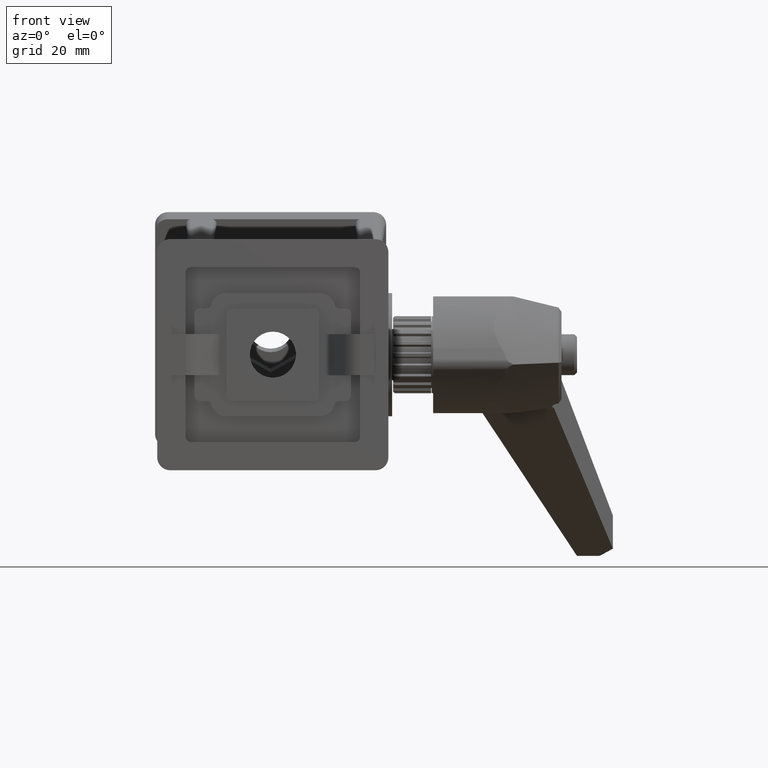
[diagram: clean part render]
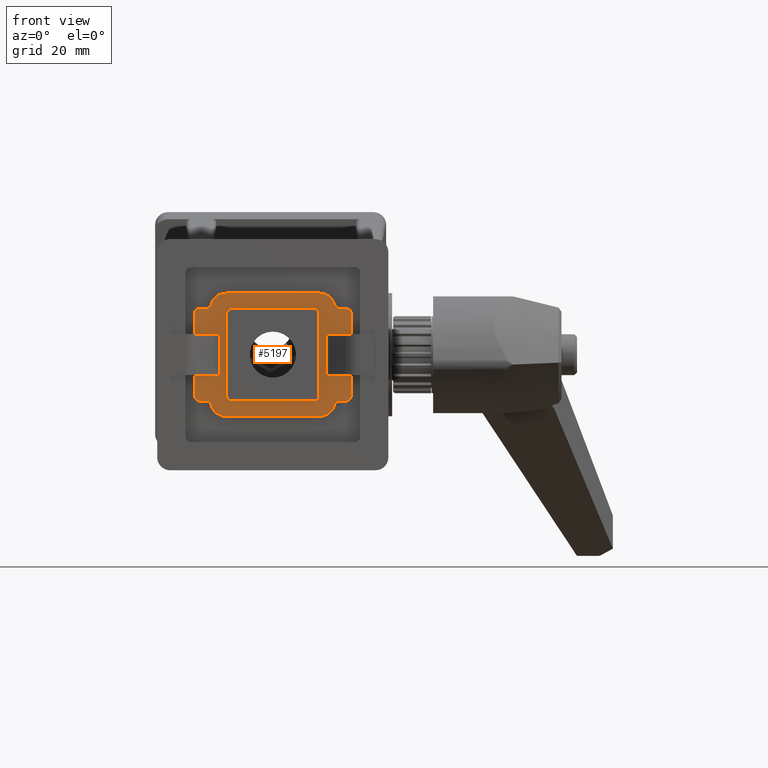
[diagram: same view with one face highlighted and labeled with its STEP entity id]
A machine part, front view. The second image highlights one B-rep face of the part: STEP entity #5197.
In plain terms, the highlighted planar face has unit normal (0, -1, -0).
Its self-contained STEP definition (entity closure, byte-faithful):
#171=LINE('',#8756,#602);
#176=LINE('',#8771,#607);
#182=LINE('',#8792,#613);
#183=LINE('',#8798,#614);
#184=LINE('',#8802,#615);
#185=LINE('',#8804,#616);
#186=LINE('',#8806,#617);
#187=LINE('',#8808,#618);
#188=LINE('',#8810,#619);
#189=LINE('',#8814,#620);
#190=LINE('',#8820,#621);
#191=LINE('',#8826,#622);
#192=LINE('',#8829,#623);
#193=LINE('',#8830,#624);
#194=LINE('',#8832,#625);
#195=LINE('',#8835,#626);
#196=LINE('',#8838,#627);
#197=LINE('',#8842,#628);
#198=LINE('',#8846,#629);
#199=LINE('',#8850,#630);
#602=VECTOR('',#6274,4.9142135623731);
#607=VECTOR('',#6285,4.9142135623731);
#613=VECTOR('',#6301,18.2540333075852);
#614=VECTOR('',#6306,1.25);
#615=VECTOR('',#6309,4.);
#616=VECTOR('',#6310,4.91421356237309);
#617=VECTOR('',#6311,8.);
#618=VECTOR('',#6312,4.91421356237309);
#619=VECTOR('',#6313,4.);
#620=VECTOR('',#6316,1.25000000000001);
#621=VECTOR('',#6321,18.2540333075852);
#622=VECTOR('',#6326,1.24999999999998);
#623=VECTOR('',#6329,4.);
#624=VECTOR('',#6330,8.);
#625=VECTOR('',#6331,4.);
#626=VECTOR('',#6334,1.24999999999999);
#627=VECTOR('',#6335,16.);
#628=VECTOR('',#6338,16.);
#629=VECTOR('',#6341,16.);
#630=VECTOR('',#6344,16.);
#975=PLANE('',#5540);
#1132=FACE_BOUND('',#1667,.T.);
#1358=FACE_OUTER_BOUND('',#1666,.T.);
#1666=EDGE_LOOP('',(#3892,#3893,#3894,#3895,#3896,#3897,#3898,#3899,#3900,
#3901,#3902,#3903,#3904,#3905,#3906,#3907,#3908,#3909,#3910,#3911,#3912,
#3913,#3914,#3915,#3916,#3917,#3918,#3919));
#1667=EDGE_LOOP('',(#3920,#3921,#3922,#3923,#3924,#3925,#3926,#3927));
#2024=CIRCLE('',#5541,1.);
#2025=CIRCLE('',#5542,3.);
#2026=CIRCLE('',#5543,3.);
#2027=CIRCLE('',#5544,1.);
#2028=CIRCLE('',#5545,1.);
#2029=CIRCLE('',#5546,1.);
#2030=CIRCLE('',#5547,1.);
#2031=CIRCLE('',#5548,3.);
#2032=CIRCLE('',#5549,3.);
#2033=CIRCLE('',#5550,0.999999999999999);
#2034=CIRCLE('',#5551,1.);
#2035=CIRCLE('',#5552,1.);
#2036=CIRCLE('',#5553,1.);
#2037=CIRCLE('',#5554,1.);
#2038=CIRCLE('',#5555,1.);
#2039=CIRCLE('',#5556,1.);
#2353=VERTEX_POINT('',#8753);
#2354=VERTEX_POINT('',#8755);
#2360=VERTEX_POINT('',#8769);
#2361=VERTEX_POINT('',#8770);
#2368=VERTEX_POINT('',#8786);
#2369=VERTEX_POINT('',#8787);
#2370=VERTEX_POINT('',#8789);
#2371=VERTEX_POINT('',#8791);
#2372=VERTEX_POINT('',#8793);
#2373=VERTEX_POINT('',#8795);
#2374=VERTEX_POINT('',#8797);
#2375=VERTEX_POINT('',#8799);
#2376=VERTEX_POINT('',#8801);
#2377=VERTEX_POINT('',#8803);
#2378=VERTEX_POINT('',#8805);
#2379=VERTEX_POINT('',#8807);
#2380=VERTEX_POINT('',#8809);
#2381=VERTEX_POINT('',#8811);
#2382=VERTEX_POINT('',#8813);
#2383=VERTEX_POINT('',#8815);
#2384=VERTEX_POINT('',#8817);
#2385=VERTEX_POINT('',#8819);
#2386=VERTEX_POINT('',#8821);
#2387=VERTEX_POINT('',#8823);
#2388=VERTEX_POINT('',#8825);
#2389=VERTEX_POINT('',#8827);
#2390=VERTEX_POINT('',#8831);
#2391=VERTEX_POINT('',#8833);
#2392=VERTEX_POINT('',#8836);
#2393=VERTEX_POINT('',#8837);
#2394=VERTEX_POINT('',#8839);
#2395=VERTEX_POINT('',#8841);
#2396=VERTEX_POINT('',#8843);
#2397=VERTEX_POINT('',#8845);
#2398=VERTEX_POINT('',#8847);
#2399=VERTEX_POINT('',#8849);
#2935=EDGE_CURVE('',#2354,#2353,#171,.T.);
#2942=EDGE_CURVE('',#2360,#2361,#176,.T.);
#2950=EDGE_CURVE('',#2368,#2369,#2024,.T.);
#2951=EDGE_CURVE('',#2369,#2370,#2025,.T.);
#2952=EDGE_CURVE('',#2370,#2371,#182,.T.);
#2953=EDGE_CURVE('',#2371,#2372,#2026,.T.);
#2954=EDGE_CURVE('',#2372,#2373,#2027,.T.);
#2955=EDGE_CURVE('',#2373,#2374,#183,.T.);
#2956=EDGE_CURVE('',#2374,#2375,#2028,.T.);
#2957=EDGE_CURVE('',#2375,#2376,#184,.T.);
#2958=EDGE_CURVE('',#2376,#2377,#185,.T.);
#2959=EDGE_CURVE('',#2377,#2378,#186,.T.);
#2960=EDGE_CURVE('',#2379,#2378,#187,.T.);
#2961=EDGE_CURVE('',#2379,#2380,#188,.T.);
#2962=EDGE_CURVE('',#2380,#2381,#2029,.T.);
#2963=EDGE_CURVE('',#2381,#2382,#189,.T.);
#2964=EDGE_CURVE('',#2382,#2383,#2030,.T.);
#2965=EDGE_CURVE('',#2383,#2384,#2031,.T.);
#2966=EDGE_CURVE('',#2384,#2385,#190,.T.);
#2967=EDGE_CURVE('',#2385,#2386,#2032,.T.);
#2968=EDGE_CURVE('',#2386,#2387,#2033,.T.);
#2969=EDGE_CURVE('',#2387,#2388,#191,.T.);
#2970=EDGE_CURVE('',#2388,#2389,#2034,.T.);
#2971=EDGE_CURVE('',#2389,#2361,#192,.T.);
#2972=EDGE_CURVE('',#2360,#2354,#193,.T.);
#2973=EDGE_CURVE('',#2353,#2390,#194,.T.);
#2974=EDGE_CURVE('',#2390,#2391,#2035,.T.);
#2975=EDGE_CURVE('',#2391,#2368,#195,.T.);
#2976=EDGE_CURVE('',#2392,#2393,#196,.T.);
#2977=EDGE_CURVE('',#2392,#2394,#2036,.T.);
#2978=EDGE_CURVE('',#2395,#2394,#197,.T.);
#2979=EDGE_CURVE('',#2395,#2396,#2037,.T.);
#2980=EDGE_CURVE('',#2397,#2396,#198,.T.);
#2981=EDGE_CURVE('',#2397,#2398,#2038,.T.);
#2982=EDGE_CURVE('',#2399,#2398,#199,.T.);
#2983=EDGE_CURVE('',#2399,#2393,#2039,.T.);
#3892=ORIENTED_EDGE('',*,*,#2950,.T.);
#3893=ORIENTED_EDGE('',*,*,#2951,.T.);
#3894=ORIENTED_EDGE('',*,*,#2952,.T.);
#3895=ORIENTED_EDGE('',*,*,#2953,.T.);
#3896=ORIENTED_EDGE('',*,*,#2954,.T.);
#3897=ORIENTED_EDGE('',*,*,#2955,.T.);
#3898=ORIENTED_EDGE('',*,*,#2956,.T.);
#3899=ORIENTED_EDGE('',*,*,#2957,.T.);
#3900=ORIENTED_EDGE('',*,*,#2958,.T.);
#3901=ORIENTED_EDGE('',*,*,#2959,.T.);
#3902=ORIENTED_EDGE('',*,*,#2960,.F.);
#3903=ORIENTED_EDGE('',*,*,#2961,.T.);
#3904=ORIENTED_EDGE('',*,*,#2962,.T.);
#3905=ORIENTED_EDGE('',*,*,#2963,.T.);
#3906=ORIENTED_EDGE('',*,*,#2964,.T.);
#3907=ORIENTED_EDGE('',*,*,#2965,.T.);
#3908=ORIENTED_EDGE('',*,*,#2966,.T.);
#3909=ORIENTED_EDGE('',*,*,#2967,.T.);
#3910=ORIENTED_EDGE('',*,*,#2968,.T.);
#3911=ORIENTED_EDGE('',*,*,#2969,.T.);
#3912=ORIENTED_EDGE('',*,*,#2970,.T.);
#3913=ORIENTED_EDGE('',*,*,#2971,.T.);
#3914=ORIENTED_EDGE('',*,*,#2942,.F.);
#3915=ORIENTED_EDGE('',*,*,#2972,.T.);
#3916=ORIENTED_EDGE('',*,*,#2935,.T.);
#3917=ORIENTED_EDGE('',*,*,#2973,.T.);
#3918=ORIENTED_EDGE('',*,*,#2974,.T.);
#3919=ORIENTED_EDGE('',*,*,#2975,.T.);
#3920=ORIENTED_EDGE('',*,*,#2976,.F.);
#3921=ORIENTED_EDGE('',*,*,#2977,.T.);
#3922=ORIENTED_EDGE('',*,*,#2978,.F.);
#3923=ORIENTED_EDGE('',*,*,#2979,.T.);
#3924=ORIENTED_EDGE('',*,*,#2980,.F.);
#3925=ORIENTED_EDGE('',*,*,#2981,.T.);
#3926=ORIENTED_EDGE('',*,*,#2982,.F.);
#3927=ORIENTED_EDGE('',*,*,#2983,.T.);
#5197=ADVANCED_FACE('',(#1358,#1132),#975,.T.);
#5540=AXIS2_PLACEMENT_3D('',#8785,#6295,#6296);
#5541=AXIS2_PLACEMENT_3D('',#8788,#6297,#6298);
#5542=AXIS2_PLACEMENT_3D('',#8790,#6299,#6300);
#5543=AXIS2_PLACEMENT_3D('',#8794,#6302,#6303);
#5544=AXIS2_PLACEMENT_3D('',#8796,#6304,#6305);
#5545=AXIS2_PLACEMENT_3D('',#8800,#6307,#6308);
#5546=AXIS2_PLACEMENT_3D('',#8812,#6314,#6315);
#5547=AXIS2_PLACEMENT_3D('',#8816,#6317,#6318);
#5548=AXIS2_PLACEMENT_3D('',#8818,#6319,#6320);
#5549=AXIS2_PLACEMENT_3D('',#8822,#6322,#6323);
#5550=AXIS2_PLACEMENT_3D('',#8824,#6324,#6325);
#5551=AXIS2_PLACEMENT_3D('',#8828,#6327,#6328);
#5552=AXIS2_PLACEMENT_3D('',#8834,#6332,#6333);
#5553=AXIS2_PLACEMENT_3D('',#8840,#6336,#6337);
#5554=AXIS2_PLACEMENT_3D('',#8844,#6339,#6340);
#5555=AXIS2_PLACEMENT_3D('',#8848,#6342,#6343);
#5556=AXIS2_PLACEMENT_3D('',#8851,#6345,#6346);
#6274=DIRECTION('',(1.,0.,0.));
#6285=DIRECTION('',(1.,0.,0.));
#6295=DIRECTION('center_axis',(0.,0.,1.));
#6296=DIRECTION('ref_axis',(1.,0.,0.));
#6297=DIRECTION('center_axis',(0.,0.,-1.));
#6298=DIRECTION('ref_axis',(1.,0.,0.));
#6299=DIRECTION('center_axis',(0.,0.,1.));
#6300=DIRECTION('ref_axis',(1.,0.,0.));
#6301=DIRECTION('',(-1.,-1.44560289664734E-16,0.));
#6302=DIRECTION('center_axis',(0.,0.,1.));
#6303=DIRECTION('ref_axis',(1.,0.,0.));
#6304=DIRECTION('center_axis',(0.,0.,-1.));
#6305=DIRECTION('ref_axis',(1.,0.,0.));
#6306=DIRECTION('',(-1.,-2.77555756156289E-16,0.));
#6307=DIRECTION('center_axis',(0.,0.,1.));
#6308=DIRECTION('ref_axis',(1.,0.,0.));
#6309=DIRECTION('',(0.,-1.,0.));
#6310=DIRECTION('',(1.,0.,0.));
#6311=DIRECTION('',(0.,-1.,0.));
#6312=DIRECTION('',(1.,0.,0.));
#6313=DIRECTION('',(0.,-1.,0.));
#6314=DIRECTION('center_axis',(0.,0.,1.));
#6315=DIRECTION('ref_axis',(1.,0.,0.));
#6316=DIRECTION('',(1.,0.,0.));
#6317=DIRECTION('center_axis',(0.,0.,-1.));
#6318=DIRECTION('ref_axis',(1.,0.,0.));
#6319=DIRECTION('center_axis',(0.,0.,1.));
#6320=DIRECTION('ref_axis',(1.,0.,0.));
#6321=DIRECTION('',(1.,2.16840434497101E-16,0.));
#6322=DIRECTION('center_axis',(0.,0.,1.));
#6323=DIRECTION('ref_axis',(1.,0.,0.));
#6324=DIRECTION('center_axis',(0.,0.,-1.));
#6325=DIRECTION('ref_axis',(1.,0.,0.));
#6326=DIRECTION('',(1.,0.,0.));
#6327=DIRECTION('center_axis',(0.,0.,1.));
#6328=DIRECTION('ref_axis',(1.,0.,0.));
#6329=DIRECTION('',(0.,1.,0.));
#6330=DIRECTION('',(0.,1.,0.));
#6331=DIRECTION('',(0.,1.,0.));
#6332=DIRECTION('center_axis',(0.,0.,1.));
#6333=DIRECTION('ref_axis',(1.,0.,0.));
#6334=DIRECTION('',(-1.,2.77555756156289E-16,0.));
#6335=DIRECTION('',(0.,-1.,0.));
#6336=DIRECTION('center_axis',(0.,0.,-1.));
#6337=DIRECTION('ref_axis',(1.,0.,0.));
#6338=DIRECTION('',(-1.,0.,0.));
#6339=DIRECTION('center_axis',(0.,0.,-1.));
#6340=DIRECTION('ref_axis',(1.,0.,0.));
#6341=DIRECTION('',(0.,1.,0.));
#6342=DIRECTION('center_axis',(0.,0.,-1.));
#6343=DIRECTION('ref_axis',(1.,0.,0.));
#6344=DIRECTION('',(1.,0.,0.));
#6345=DIRECTION('center_axis',(0.,0.,-1.));
#6346=DIRECTION('ref_axis',(1.,0.,0.));
#8753=CARTESIAN_POINT('',(15.25,4.,2.5));
#8755=CARTESIAN_POINT('',(10.3357864376269,4.,2.5));
#8756=CARTESIAN_POINT('',(12.,4.,2.5));
#8769=CARTESIAN_POINT('',(10.3357864376269,-4.,2.5));
#8770=CARTESIAN_POINT('',(15.25,-4.,2.5));
#8771=CARTESIAN_POINT('',(12.,-4.,2.5));
#8785=CARTESIAN_POINT('Origin',(12.,-12.,2.5));
#8786=CARTESIAN_POINT('',(13.,9.,2.5));
#8787=CARTESIAN_POINT('',(12.0317541634482,9.75,2.5));
#8788=CARTESIAN_POINT('Origin',(13.,10.,2.5));
#8789=CARTESIAN_POINT('',(9.12701665379259,12.,2.5));
#8790=CARTESIAN_POINT('Origin',(9.12701665379259,9.00000000000001,2.5));
#8791=CARTESIAN_POINT('',(-9.12701665379258,12.,2.5));
#8792=CARTESIAN_POINT('',(-12.,12.,2.5));
#8793=CARTESIAN_POINT('',(-12.0317541634481,9.75,2.5));
#8794=CARTESIAN_POINT('Origin',(-9.12701665379258,9.,2.5));
#8795=CARTESIAN_POINT('',(-13.,9.,2.5));
#8796=CARTESIAN_POINT('Origin',(-13.,10.,2.5));
#8797=CARTESIAN_POINT('',(-14.25,9.,2.5));
#8798=CARTESIAN_POINT('',(-15.25,9.,2.5));
#8799=CARTESIAN_POINT('',(-15.25,8.,2.5));
#8800=CARTESIAN_POINT('Origin',(-14.25,8.,2.5));
#8801=CARTESIAN_POINT('',(-15.25,4.,2.5));
#8802=CARTESIAN_POINT('',(-15.25,9.,2.5));
#8803=CARTESIAN_POINT('',(-10.3357864376269,4.,2.5));
#8804=CARTESIAN_POINT('',(12.,4.,2.5));
#8805=CARTESIAN_POINT('',(-10.3357864376269,-4.,2.5));
#8806=CARTESIAN_POINT('',(-10.3357864376269,-4.,2.5));
#8807=CARTESIAN_POINT('',(-15.25,-4.,2.5));
#8808=CARTESIAN_POINT('',(12.,-4.,2.5));
#8809=CARTESIAN_POINT('',(-15.25,-8.,2.5));
#8810=CARTESIAN_POINT('',(-15.25,9.,2.5));
#8811=CARTESIAN_POINT('',(-14.25,-9.,2.5));
#8812=CARTESIAN_POINT('Origin',(-14.25,-8.,2.5));
#8813=CARTESIAN_POINT('',(-13.,-9.,2.5));
#8814=CARTESIAN_POINT('',(-15.25,-9.,2.5));
#8815=CARTESIAN_POINT('',(-12.0317541634481,-9.75,2.5));
#8816=CARTESIAN_POINT('Origin',(-13.,-10.,2.5));
#8817=CARTESIAN_POINT('',(-9.12701665379257,-12.,2.5));
#8818=CARTESIAN_POINT('Origin',(-9.12701665379257,-9.,2.5));
#8819=CARTESIAN_POINT('',(9.1270166537926,-12.,2.5));
#8820=CARTESIAN_POINT('',(-12.,-12.,2.5));
#8821=CARTESIAN_POINT('',(12.0317541634482,-9.75,2.5));
#8822=CARTESIAN_POINT('Origin',(9.1270166537926,-9.,2.5));
#8823=CARTESIAN_POINT('',(13.,-9.,2.5));
#8824=CARTESIAN_POINT('Origin',(13.,-10.,2.5));
#8825=CARTESIAN_POINT('',(14.25,-9.,2.5));
#8826=CARTESIAN_POINT('',(9.,-9.,2.5));
#8827=CARTESIAN_POINT('',(15.25,-8.,2.5));
#8828=CARTESIAN_POINT('Origin',(14.25,-8.,2.5));
#8829=CARTESIAN_POINT('',(15.25,9.,2.5));
#8830=CARTESIAN_POINT('',(10.3357864376269,-12.,2.5));
#8831=CARTESIAN_POINT('',(15.25,8.,2.5));
#8832=CARTESIAN_POINT('',(15.25,9.,2.5));
#8833=CARTESIAN_POINT('',(14.25,9.,2.5));
#8834=CARTESIAN_POINT('Origin',(14.25,8.,2.5));
#8835=CARTESIAN_POINT('',(9.,9.,2.5));
#8836=CARTESIAN_POINT('',(-9.,8.,2.5));
#8837=CARTESIAN_POINT('',(-9.,-8.,2.5));
#8838=CARTESIAN_POINT('',(-9.,9.,2.5));
#8839=CARTESIAN_POINT('',(-8.,9.,2.5));
#8840=CARTESIAN_POINT('Origin',(-8.,8.,2.5));
#8841=CARTESIAN_POINT('',(8.,9.,2.5));
#8842=CARTESIAN_POINT('',(-9.,9.,2.5));
#8843=CARTESIAN_POINT('',(9.,8.,2.5));
#8844=CARTESIAN_POINT('Origin',(8.,8.,2.5));
#8845=CARTESIAN_POINT('',(9.,-8.,2.5));
#8846=CARTESIAN_POINT('',(9.,9.,2.5));
#8847=CARTESIAN_POINT('',(8.,-9.,2.5));
#8848=CARTESIAN_POINT('Origin',(8.,-8.,2.5));
#8849=CARTESIAN_POINT('',(-8.,-9.,2.5));
#8850=CARTESIAN_POINT('',(-9.,-9.,2.5));
#8851=CARTESIAN_POINT('Origin',(-8.,-8.,2.5));